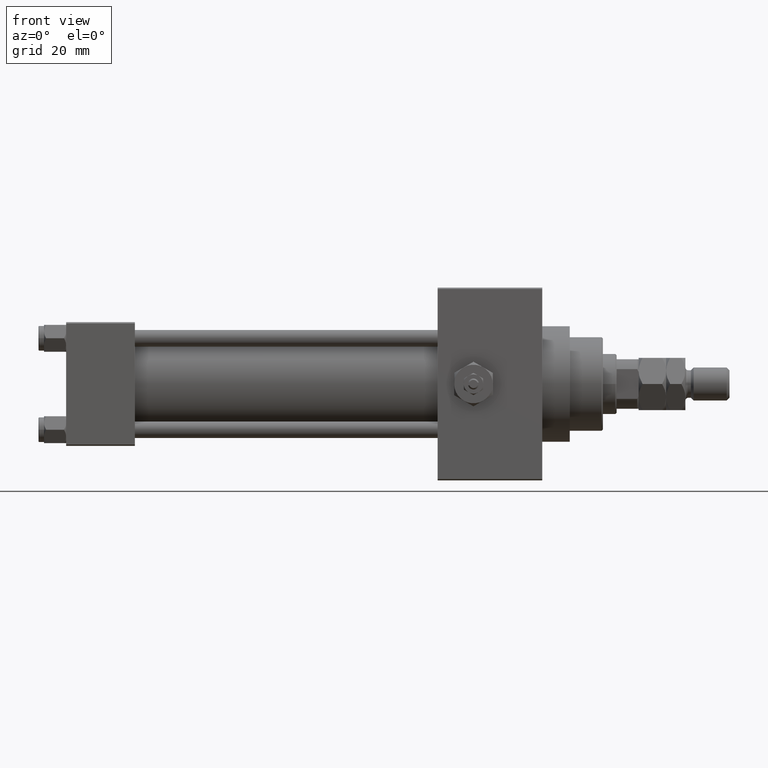
[diagram: clean part render]
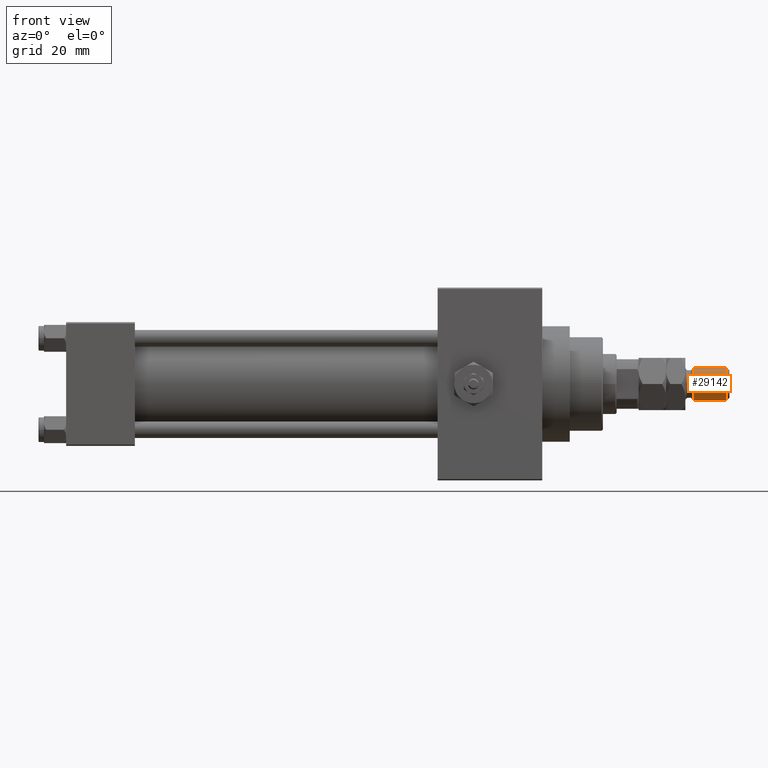
[diagram: same view with one face highlighted and labeled with its STEP entity id]
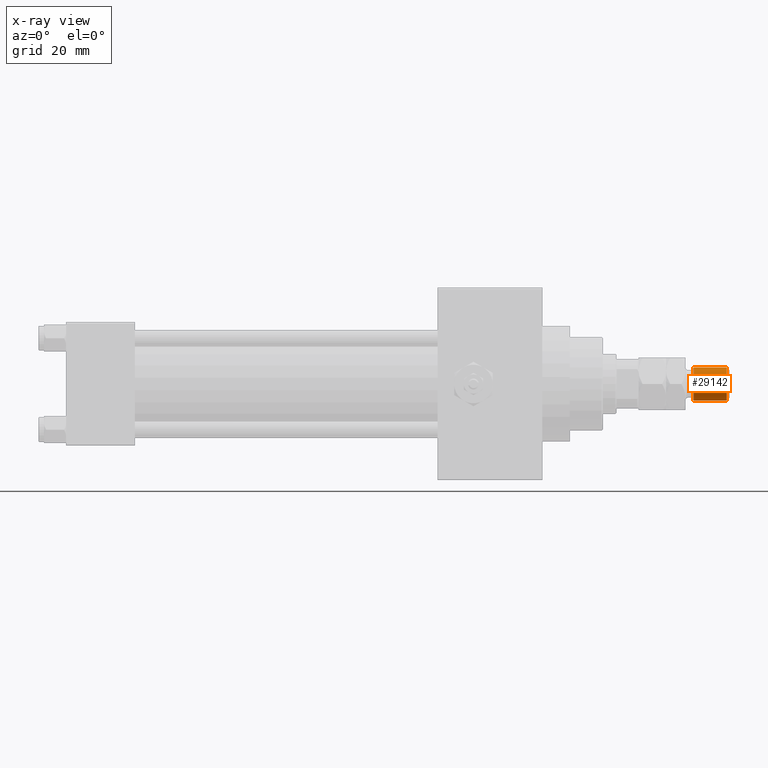
[diagram: x-ray of the same camera — body ghosted, the highlighted face saturated]
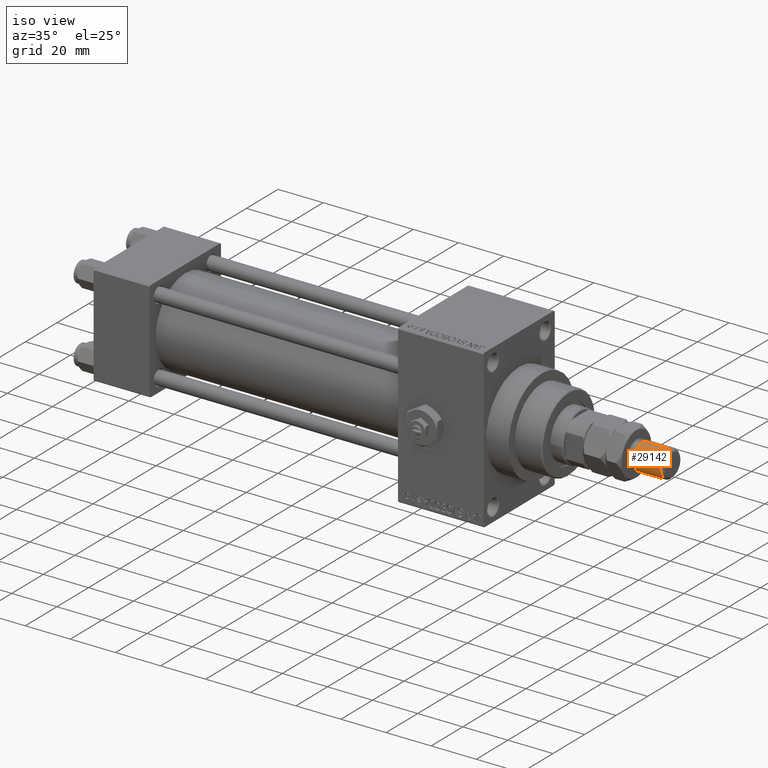
[diagram: same view with one face highlighted and labeled with its STEP entity id]
A machine part, front view. The second image highlights one B-rep face of the part: STEP entity #29142.
The next image is the same camera in x-ray: the body ghosted, the highlighted face saturated — about 0% of this face is hidden behind the body in this view.
A second angle (iso view) of the same face is appended — the face is thin or edge-on in the first view.
In plain terms, the highlighted cylindrical surface (edge-blend (fillet) strip) has radius 6 mm, axis along (-1, -0, 0).
Its self-contained STEP definition (entity closure, byte-faithful):
#2053 = VERTEX_POINT ( 'NONE', #41700 ) ;
#2991 = AXIS2_PLACEMENT_3D ( 'NONE', #19206, #31419, #15375 ) ;
#3711 = LINE ( 'NONE', #26373, #31118 ) ;
#5528 = EDGE_CURVE ( 'NONE', #49466, #7443, #33032, .T. ) ;
#5701 = EDGE_CURVE ( 'NONE', #2053, #17203, #50131, .T. ) ;
#6533 = CARTESIAN_POINT ( 'NONE',  ( 0.000000000000000000, 0.000000000000000000, 32.00000000000000000 ) ) ;
#7034 = DIRECTION ( 'NONE',  ( -0.000000000000000000, -0.000000000000000000, -1.000000000000000000 ) ) ;
#7443 = VERTEX_POINT ( 'NONE', #50204 ) ;
#8735 = ORIENTED_EDGE ( 'NONE', *, *, #16687, .T. ) ;
#14924 = VECTOR ( 'NONE', #34059, 1000.000000000000000 ) ;
#15375 = DIRECTION ( 'NONE',  ( -1.000000000000000000, 0.000000000000000000, 0.000000000000000000 ) ) ;
#16687 = EDGE_CURVE ( 'NONE', #17203, #49466, #3711, .T. ) ;
#17203 = VERTEX_POINT ( 'NONE', #50193 ) ;
#18950 = CYLINDRICAL_SURFACE ( 'NONE', #2991, 6.000000000000000888 ) ;
#19206 = CARTESIAN_POINT ( 'NONE',  ( 0.000000000000000000, 0.000000000000000000, 33.00000000000000000 ) ) ;
#22326 = CARTESIAN_POINT ( 'NONE',  ( 6.000000000000000888, 7.347880794884120722E-16, 33.00000000000000000 ) ) ;
#23285 = FACE_OUTER_BOUND ( 'NONE', #37670, .T. ) ;
#25378 = DIRECTION ( 'NONE',  ( 0.000000000000000000, 0.000000000000000000, -1.000000000000000000 ) ) ;
#26373 = CARTESIAN_POINT ( 'NONE',  ( -6.000000000000000888, 0.000000000000000000, 33.00000000000000000 ) ) ;
#28154 = AXIS2_PLACEMENT_3D ( 'NONE', #6533, #25378, #41421 ) ;
#29142 = ADVANCED_FACE ( 'NONE', ( #23285 ), #18950, .T. ) ;
#30476 = LINE ( 'NONE', #22326, #14924 ) ;
#31118 = VECTOR ( 'NONE', #7034, 1000.000000000000000 ) ;
#31419 = DIRECTION ( 'NONE',  ( -0.000000000000000000, -0.000000000000000000, -1.000000000000000000 ) ) ;
#33032 = CIRCLE ( 'NONE', #38749, 6.000000000000000888 ) ;
#33557 = ORIENTED_EDGE ( 'NONE', *, *, #5528, .T. ) ;
#34059 = DIRECTION ( 'NONE',  ( -0.000000000000000000, -0.000000000000000000, -1.000000000000000000 ) ) ;
#34454 = ORIENTED_EDGE ( 'NONE', *, *, #34492, .F. ) ;
#34492 = EDGE_CURVE ( 'NONE', #2053, #7443, #30476, .T. ) ;
#37670 = EDGE_LOOP ( 'NONE', ( #34454, #44656, #8735, #33557 ) ) ;
#38749 = AXIS2_PLACEMENT_3D ( 'NONE', #43977, #39661, #44222 ) ;
#39661 = DIRECTION ( 'NONE',  ( -0.000000000000000000, -0.000000000000000000, 1.000000000000000000 ) ) ;
#41421 = DIRECTION ( 'NONE',  ( 1.000000000000000000, 0.000000000000000000, 0.000000000000000000 ) ) ;
#41700 = CARTESIAN_POINT ( 'NONE',  ( 6.000000000000000888, 7.347880794884120722E-16, 32.00000000000000000 ) ) ;
#43977 = CARTESIAN_POINT ( 'NONE',  ( 0.000000000000000000, 0.000000000000000000, 20.00000000000000711 ) ) ;
#44222 = DIRECTION ( 'NONE',  ( 1.000000000000000000, 0.000000000000000000, 0.000000000000000000 ) ) ;
#44656 = ORIENTED_EDGE ( 'NONE', *, *, #5701, .T. ) ;
#49466 = VERTEX_POINT ( 'NONE', #49660 ) ;
#49660 = CARTESIAN_POINT ( 'NONE',  ( -6.000000000000000888, 0.000000000000000000, 20.00000000000000711 ) ) ;
#50131 = CIRCLE ( 'NONE', #28154, 6.000000000000000888 ) ;
#50193 = CARTESIAN_POINT ( 'NONE',  ( -6.000000000000000888, 0.000000000000000000, 32.00000000000000000 ) ) ;
#50204 = CARTESIAN_POINT ( 'NONE',  ( 6.000000000000000888, 7.347880794884120722E-16, 20.00000000000000711 ) ) ;